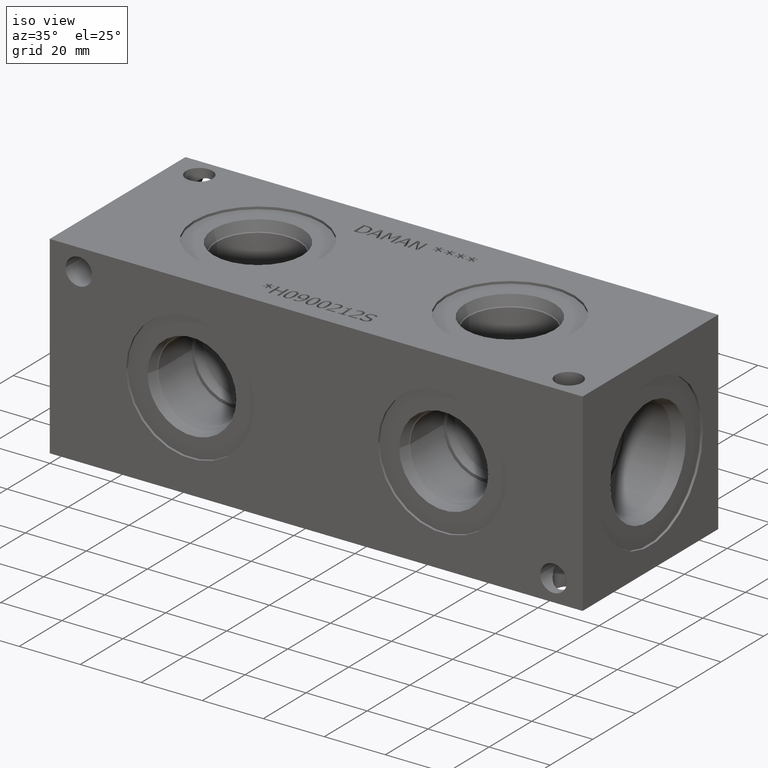
[diagram: clean part render]
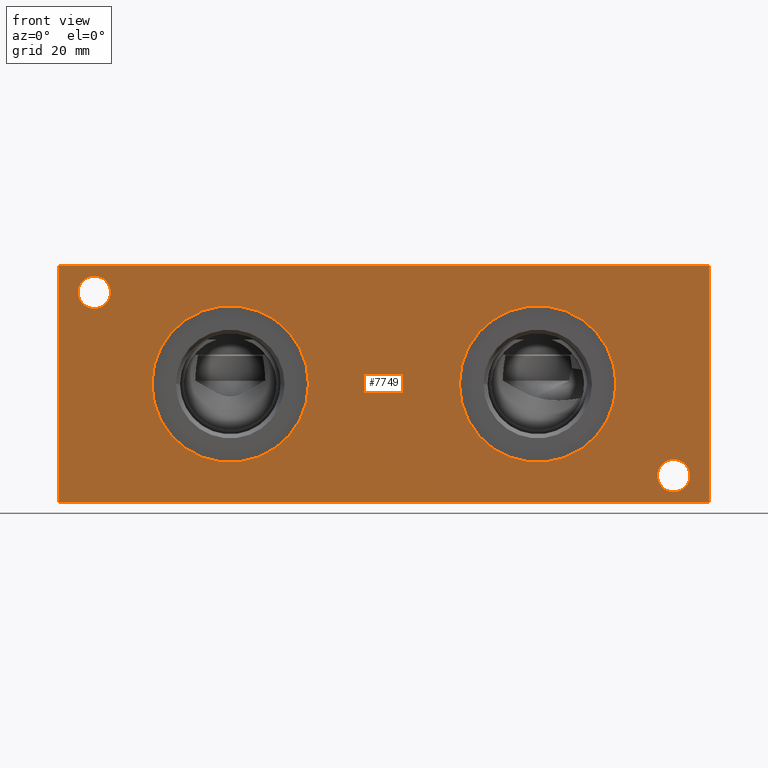
[diagram: tour spotlight — one face highlighted and labeled with its STEP entity id]
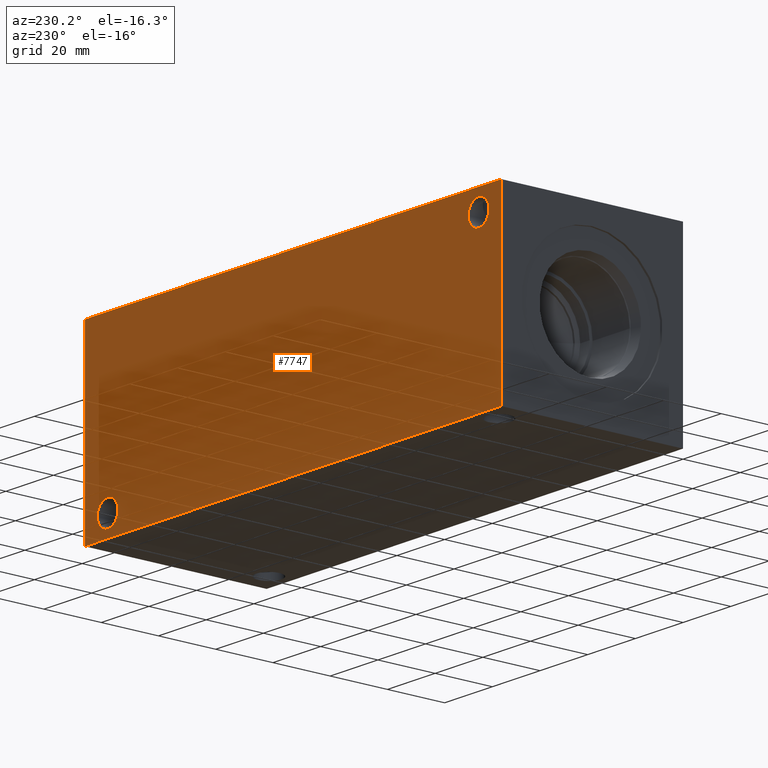
[diagram: tour spotlight — one face highlighted and labeled with its STEP entity id]
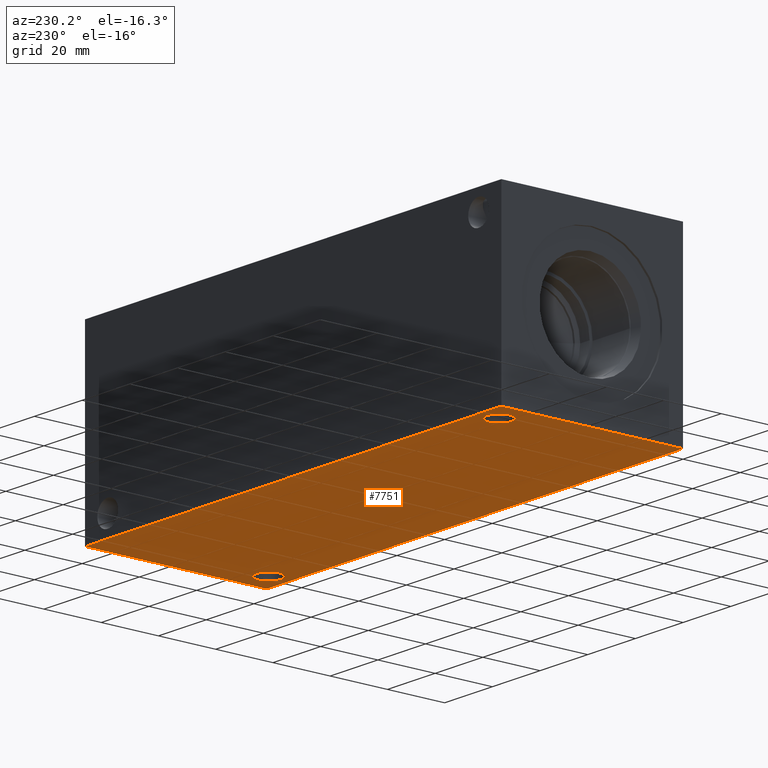
[diagram: tour spotlight — one face highlighted and labeled with its STEP entity id]
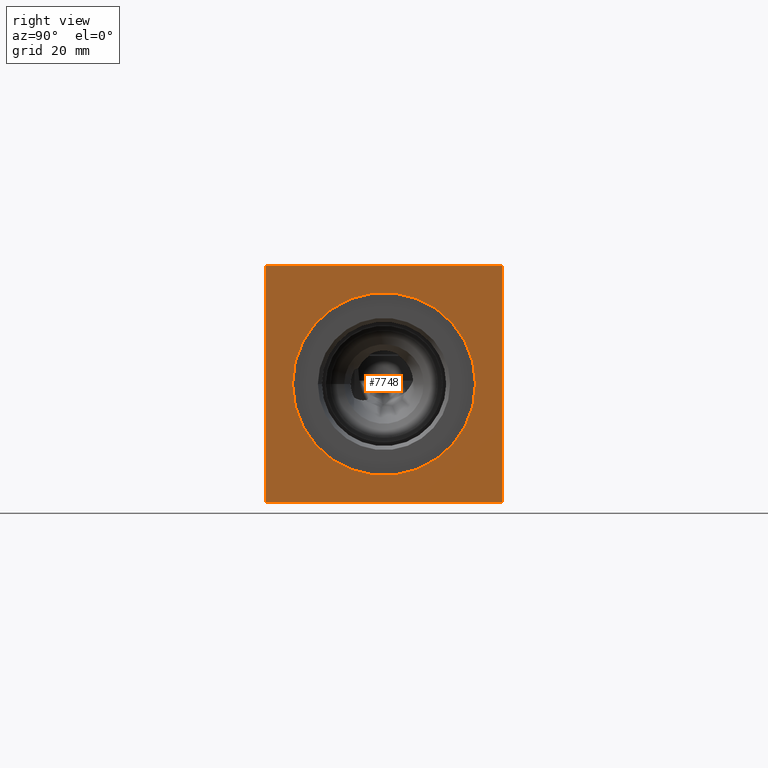
[diagram: tour spotlight — one face highlighted and labeled with its STEP entity id]
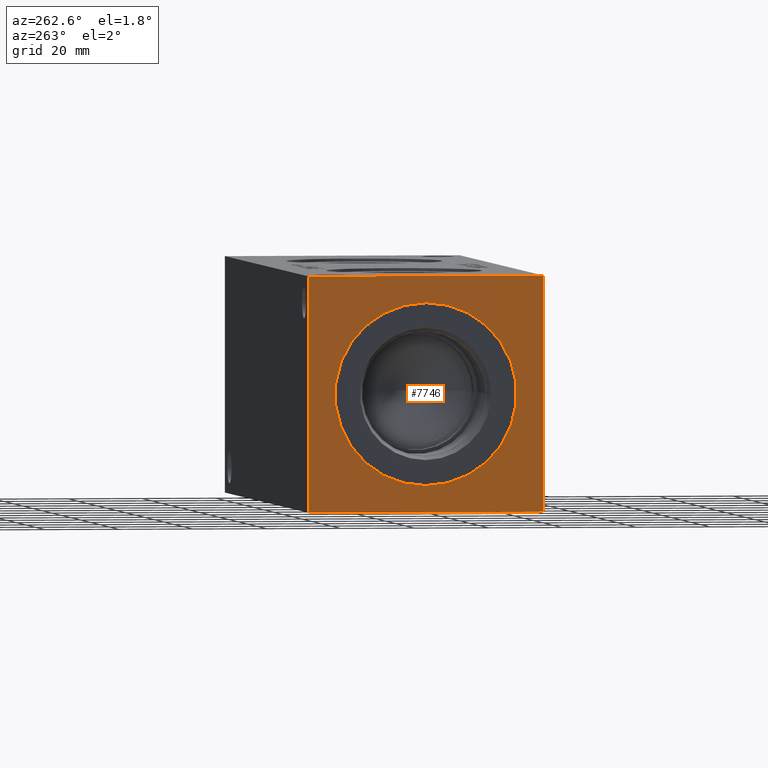
[diagram: tour spotlight — one face highlighted and labeled with its STEP entity id]
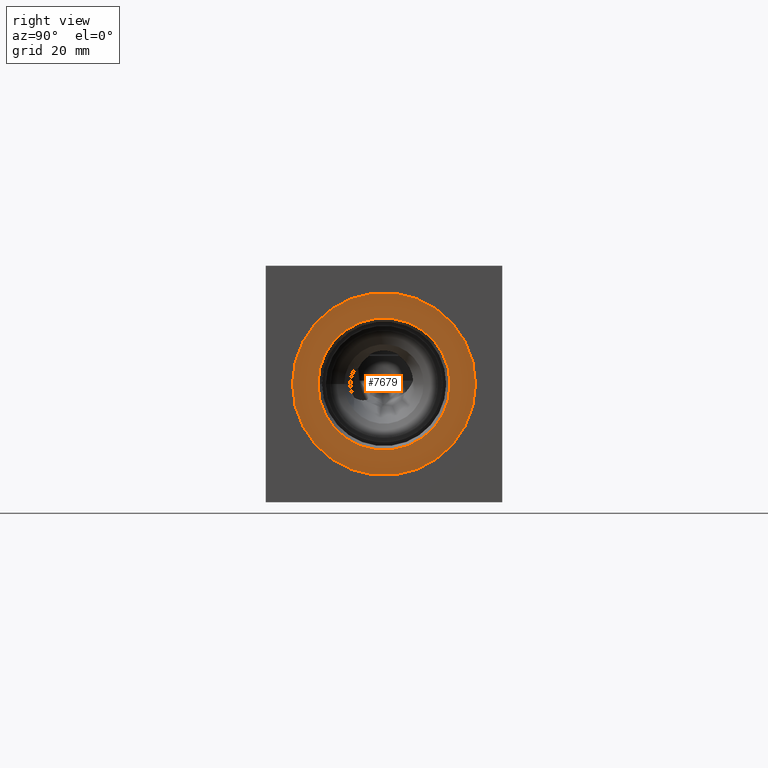
[diagram: tour spotlight — one face highlighted and labeled with its STEP entity id]
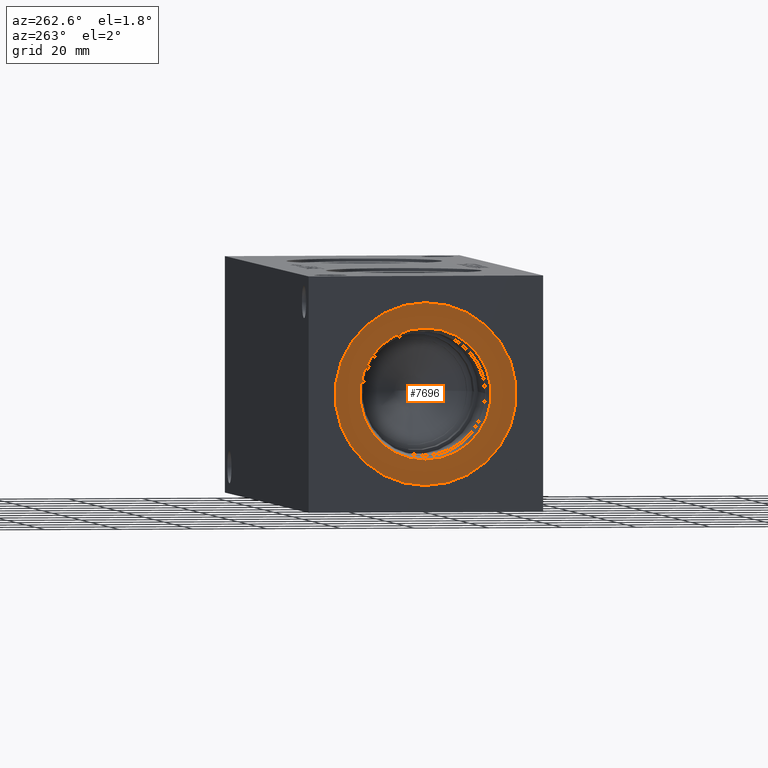
[diagram: tour spotlight — one face highlighted and labeled with its STEP entity id]
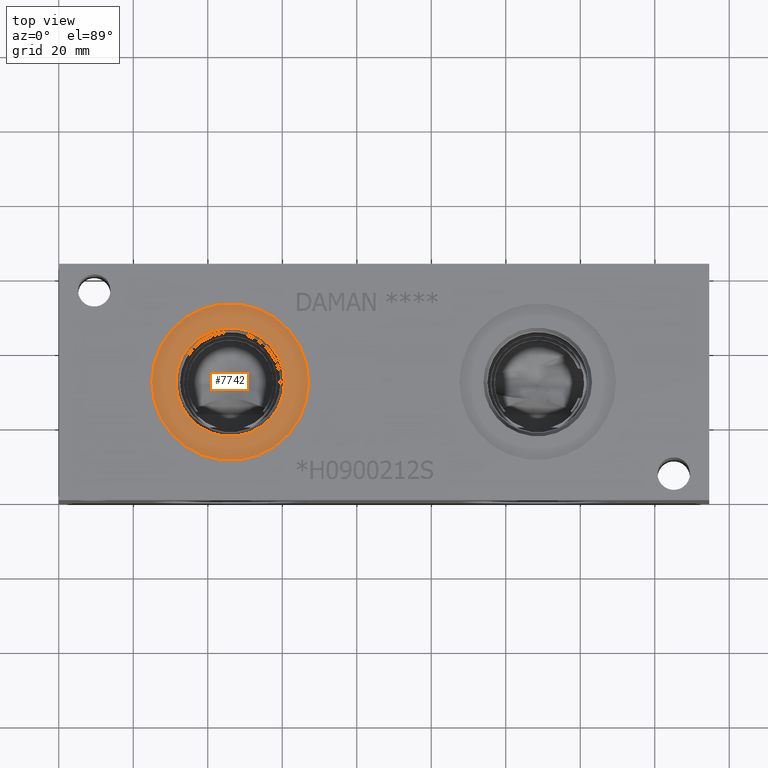
[diagram: tour spotlight — one face highlighted and labeled with its STEP entity id]
A machine part: a face-by-face anatomy tour. The part has 393 B-rep faces; the first image is the clean iso view, then the 8 largest visible faces are spotlighted one at a time (largest first), each with its STEP entity span.

Face 1 — front view, entity #7749. In plain terms, the highlighted planar face has unit normal (0, -1, 0).
Definition (entity closure, byte-faithful):
#149=CIRCLE('',#8064,4.3688);
#150=CIRCLE('',#8065,4.3688);
#152=CIRCLE('',#8074,4.3688);
#153=CIRCLE('',#8075,4.3688);
#155=CIRCLE('',#8084,21.0185);
#156=CIRCLE('',#8085,21.0185);
#178=CIRCLE('',#8126,21.0185);
#179=CIRCLE('',#8127,21.0185);
#258=FACE_BOUND('',#1425,.T.);
#259=FACE_BOUND('',#1426,.T.);
#260=FACE_BOUND('',#1427,.T.);
#261=FACE_BOUND('',#1428,.T.);
#988=FACE_OUTER_BOUND('',#1424,.T.);
#1424=EDGE_LOOP('',(#6810,#6811,#6812,#6813));
#1425=EDGE_LOOP('',(#6814,#6815));
#1426=EDGE_LOOP('',(#6816,#6817));
#1427=EDGE_LOOP('',(#6818,#6819));
#1428=EDGE_LOOP('',(#6820,#6821));
#1701=LINE('',#11909,#2416);
#2141=LINE('',#13480,#2856);
#2146=LINE('',#13489,#2861);
#2147=LINE('',#13491,#2862);
#2416=VECTOR('',#8600,10.);
#2856=VECTOR('',#9744,10.);
#2861=VECTOR('',#9753,10.);
#2862=VECTOR('',#9756,10.);
#3167=VERTEX_POINT('',#11907);
#3168=VERTEX_POINT('',#11908);
#3506=VERTEX_POINT('',#13183);
#3507=VERTEX_POINT('',#13184);
#3511=VERTEX_POINT('',#13201);
#3512=VERTEX_POINT('',#13202);
#3516=VERTEX_POINT('',#13219);
#3517=VERTEX_POINT('',#13220);
#3549=VERTEX_POINT('',#13368);
#3550=VERTEX_POINT('',#13369);
#3582=VERTEX_POINT('',#13478);
#3584=VERTEX_POINT('',#13487);
#4041=EDGE_CURVE('',#3167,#3168,#1701,.T.);
#4538=EDGE_CURVE('',#3506,#3507,#149,.T.);
#4539=EDGE_CURVE('',#3507,#3506,#150,.T.);
#4548=EDGE_CURVE('',#3511,#3512,#152,.T.);
#4549=EDGE_CURVE('',#3512,#3511,#153,.T.);
#4558=EDGE_CURVE('',#3516,#3517,#155,.T.);
#4559=EDGE_CURVE('',#3517,#3516,#156,.T.);
#4606=EDGE_CURVE('',#3549,#3550,#178,.T.);
#4607=EDGE_CURVE('',#3550,#3549,#179,.T.);
#4660=EDGE_CURVE('',#3582,#3167,#2141,.T.);
#4665=EDGE_CURVE('',#3584,#3168,#2146,.T.);
#4666=EDGE_CURVE('',#3582,#3584,#2147,.T.);
#6810=ORIENTED_EDGE('',*,*,#4666,.T.);
#6811=ORIENTED_EDGE('',*,*,#4665,.T.);
#6812=ORIENTED_EDGE('',*,*,#4041,.F.);
#6813=ORIENTED_EDGE('',*,*,#4660,.F.);
#6814=ORIENTED_EDGE('',*,*,#4538,.T.);
#6815=ORIENTED_EDGE('',*,*,#4539,.T.);
#6816=ORIENTED_EDGE('',*,*,#4548,.T.);
#6817=ORIENTED_EDGE('',*,*,#4549,.T.);
#6818=ORIENTED_EDGE('',*,*,#4558,.T.);
#6819=ORIENTED_EDGE('',*,*,#4559,.T.);
#6820=ORIENTED_EDGE('',*,*,#4606,.T.);
#6821=ORIENTED_EDGE('',*,*,#4607,.T.);
#7053=PLANE('',#8189);
#7749=ADVANCED_FACE('',(#988,#258,#259,#260,#261),#7053,.T.);
#8064=AXIS2_PLACEMENT_3D('',#13185,#9461,#9462);
#8065=AXIS2_PLACEMENT_3D('',#13186,#9463,#9464);
#8074=AXIS2_PLACEMENT_3D('',#13203,#9484,#9485);
#8075=AXIS2_PLACEMENT_3D('',#13204,#9486,#9487);
#8084=AXIS2_PLACEMENT_3D('',#13221,#9507,#9508);
#8085=AXIS2_PLACEMENT_3D('',#13222,#9509,#9510);
#8126=AXIS2_PLACEMENT_3D('',#13370,#9605,#9606);
#8127=AXIS2_PLACEMENT_3D('',#13371,#9607,#9608);
#8189=AXIS2_PLACEMENT_3D('',#13490,#9754,#9755);
#8600=DIRECTION('',(1.,0.,0.));
#9461=DIRECTION('center_axis',(0.,1.,0.));
#9462=DIRECTION('ref_axis',(1.,0.,0.));
#9463=DIRECTION('center_axis',(0.,1.,0.));
#9464=DIRECTION('ref_axis',(1.,0.,0.));
#9484=DIRECTION('center_axis',(0.,1.,0.));
#9485=DIRECTION('ref_axis',(1.,0.,0.));
#9486=DIRECTION('center_axis',(0.,1.,0.));
#9487=DIRECTION('ref_axis',(1.,0.,0.));
#9507=DIRECTION('center_axis',(0.,1.,0.));
#9508=DIRECTION('ref_axis',(1.,0.,0.));
#9509=DIRECTION('center_axis',(0.,1.,0.));
#9510=DIRECTION('ref_axis',(1.,0.,0.));
#9605=DIRECTION('center_axis',(0.,1.,0.));
#9606=DIRECTION('ref_axis',(1.,0.,0.));
#9607=DIRECTION('center_axis',(0.,1.,0.));
#9608=DIRECTION('ref_axis',(1.,0.,0.));
#9744=DIRECTION('',(0.,0.,1.));
#9753=DIRECTION('',(0.,0.,1.));
#9754=DIRECTION('center_axis',(0.,-1.,0.));
#9755=DIRECTION('ref_axis',(1.,0.,0.));
#9756=DIRECTION('',(1.,0.,0.));
#11907=CARTESIAN_POINT('',(0.,0.,63.5));
#11908=CARTESIAN_POINT('',(174.625,0.,63.5));
#11909=CARTESIAN_POINT('',(0.,0.,63.5));
#13183=CARTESIAN_POINT('',(169.4688,0.,7.1374));
#13184=CARTESIAN_POINT('',(160.7312,0.,7.1374));
#13185=CARTESIAN_POINT('Origin',(165.1,0.,7.1374));
#13186=CARTESIAN_POINT('Origin',(165.1,0.,7.1374));
#13201=CARTESIAN_POINT('',(13.8938,0.,56.3626));
#13202=CARTESIAN_POINT('',(5.1562,0.,56.3626));
#13203=CARTESIAN_POINT('Origin',(9.525,0.,56.3626));
#13204=CARTESIAN_POINT('Origin',(9.525,0.,56.3626));
#13219=CARTESIAN_POINT('',(149.5933,0.,31.75));
#13220=CARTESIAN_POINT('',(107.5563,0.,31.75));
#13221=CARTESIAN_POINT('Origin',(128.5748,0.,31.75));
#13222=CARTESIAN_POINT('Origin',(128.5748,0.,31.75));
#13368=CARTESIAN_POINT('',(67.0433,0.,31.75));
#13369=CARTESIAN_POINT('',(25.0063,0.,31.75));
#13370=CARTESIAN_POINT('Origin',(46.0248,0.,31.75));
#13371=CARTESIAN_POINT('Origin',(46.0248,0.,31.75));
#13478=CARTESIAN_POINT('',(0.,0.,0.));
#13480=CARTESIAN_POINT('',(0.,0.,0.));
#13487=CARTESIAN_POINT('',(174.625,0.,0.));
#13489=CARTESIAN_POINT('',(174.625,0.,0.));
#13490=CARTESIAN_POINT('Origin',(0.,0.,0.));
#13491=CARTESIAN_POINT('',(0.,0.,0.));

Face 2 — auxiliary view, entity #7747. In plain terms, the highlighted planar face has unit normal (0, 1, 0).
Definition (entity closure, byte-faithful):
#151=CIRCLE('',#8071,4.3688);
#154=CIRCLE('',#8081,4.3688);
#255=FACE_BOUND('',#1420,.T.);
#256=FACE_BOUND('',#1421,.T.);
#986=FACE_OUTER_BOUND('',#1419,.T.);
#1419=EDGE_LOOP('',(#6798,#6799,#6800,#6801));
#1420=EDGE_LOOP('',(#6802));
#1421=EDGE_LOOP('',(#6803));
#1703=LINE('',#11913,#2418);
#2142=LINE('',#13481,#2857);
#2143=LINE('',#13484,#2858);
#2144=LINE('',#13485,#2859);
#2418=VECTOR('',#8602,10.);
#2857=VECTOR('',#9745,10.);
#2858=VECTOR('',#9748,10.);
#2859=VECTOR('',#9749,10.);
#3169=VERTEX_POINT('',#11910);
#3170=VERTEX_POINT('',#11912);
#3510=VERTEX_POINT('',#13195);
#3515=VERTEX_POINT('',#13213);
#3581=VERTEX_POINT('',#13477);
#3583=VERTEX_POINT('',#13483);
#4043=EDGE_CURVE('',#3169,#3170,#1703,.T.);
#4546=EDGE_CURVE('',#3510,#3510,#151,.T.);
#4556=EDGE_CURVE('',#3515,#3515,#154,.T.);
#4661=EDGE_CURVE('',#3581,#3170,#2142,.T.);
#4662=EDGE_CURVE('',#3583,#3581,#2143,.T.);
#4663=EDGE_CURVE('',#3583,#3169,#2144,.T.);
#6798=ORIENTED_EDGE('',*,*,#4662,.T.);
#6799=ORIENTED_EDGE('',*,*,#4661,.T.);
#6800=ORIENTED_EDGE('',*,*,#4043,.F.);
#6801=ORIENTED_EDGE('',*,*,#4663,.F.);
#6802=ORIENTED_EDGE('',*,*,#4546,.T.);
#6803=ORIENTED_EDGE('',*,*,#4556,.T.);
#7051=PLANE('',#8187);
#7747=ADVANCED_FACE('',(#986,#255,#256),#7051,.T.);
#8071=AXIS2_PLACEMENT_3D('',#13197,#9477,#9478);
#8081=AXIS2_PLACEMENT_3D('',#13215,#9500,#9501);
#8187=AXIS2_PLACEMENT_3D('',#13482,#9746,#9747);
#8602=DIRECTION('',(-1.,0.,0.));
#9477=DIRECTION('center_axis',(0.,-1.,0.));
#9478=DIRECTION('ref_axis',(1.,0.,0.));
#9500=DIRECTION('center_axis',(0.,-1.,0.));
#9501=DIRECTION('ref_axis',(1.,0.,0.));
#9745=DIRECTION('',(0.,0.,1.));
#9746=DIRECTION('center_axis',(0.,1.,0.));
#9747=DIRECTION('ref_axis',(-1.,0.,0.));
#9748=DIRECTION('',(-1.,0.,0.));
#9749=DIRECTION('',(0.,0.,1.));
#11910=CARTESIAN_POINT('',(174.625,63.5,63.5));
#11912=CARTESIAN_POINT('',(0.,63.5,63.5));
#11913=CARTESIAN_POINT('',(174.625,63.5,63.5));
#13195=CARTESIAN_POINT('',(160.7312,63.5,7.1374));
#13197=CARTESIAN_POINT('Origin',(165.1,63.5,7.1374));
#13213=CARTESIAN_POINT('',(5.1562,63.5,56.3626));
#13215=CARTESIAN_POINT('Origin',(9.525,63.5,56.3626));
#13477=CARTESIAN_POINT('',(0.,63.5,0.));
#13481=CARTESIAN_POINT('',(0.,63.5,0.));
#13482=CARTESIAN_POINT('Origin',(174.625,63.5,0.));
#13483=CARTESIAN_POINT('',(174.625,63.5,0.));
#13484=CARTESIAN_POINT('',(174.625,63.5,0.));
#13485=CARTESIAN_POINT('',(174.625,63.5,0.));

Face 3 — auxiliary view, entity #7751. In plain terms, the highlighted planar face has unit normal (0, 0, 1).
Definition (entity closure, byte-faithful):
#188=CIRCLE('',#8141,4.3688);
#189=CIRCLE('',#8143,4.3688);
#262=FACE_BOUND('',#1431,.T.);
#263=FACE_BOUND('',#1432,.T.);
#990=FACE_OUTER_BOUND('',#1430,.T.);
#1430=EDGE_LOOP('',(#6825,#6826,#6827,#6828));
#1431=EDGE_LOOP('',(#6829));
#1432=EDGE_LOOP('',(#6830));
#2140=LINE('',#13479,#2855);
#2143=LINE('',#13484,#2858);
#2145=LINE('',#13488,#2860);
#2147=LINE('',#13491,#2862);
#2855=VECTOR('',#9743,10.);
#2858=VECTOR('',#9748,10.);
#2860=VECTOR('',#9752,10.);
#2862=VECTOR('',#9756,10.);
#3559=VERTEX_POINT('',#13397);
#3560=VERTEX_POINT('',#13401);
#3581=VERTEX_POINT('',#13477);
#3582=VERTEX_POINT('',#13478);
#3583=VERTEX_POINT('',#13483);
#3584=VERTEX_POINT('',#13487);
#4621=EDGE_CURVE('',#3559,#3559,#188,.T.);
#4623=EDGE_CURVE('',#3560,#3560,#189,.T.);
#4659=EDGE_CURVE('',#3581,#3582,#2140,.T.);
#4662=EDGE_CURVE('',#3583,#3581,#2143,.T.);
#4664=EDGE_CURVE('',#3584,#3583,#2145,.T.);
#4666=EDGE_CURVE('',#3582,#3584,#2147,.T.);
#6825=ORIENTED_EDGE('',*,*,#4666,.F.);
#6826=ORIENTED_EDGE('',*,*,#4659,.F.);
#6827=ORIENTED_EDGE('',*,*,#4662,.F.);
#6828=ORIENTED_EDGE('',*,*,#4664,.F.);
#6829=ORIENTED_EDGE('',*,*,#4621,.T.);
#6830=ORIENTED_EDGE('',*,*,#4623,.T.);
#7055=PLANE('',#8191);
#7751=ADVANCED_FACE('',(#990,#262,#263),#7055,.F.);
#8141=AXIS2_PLACEMENT_3D('',#13399,#9640,#9641);
#8143=AXIS2_PLACEMENT_3D('',#13403,#9645,#9646);
#8191=AXIS2_PLACEMENT_3D('',#13493,#9759,#9760);
#9640=DIRECTION('center_axis',(0.,0.,1.));
#9641=DIRECTION('ref_axis',(1.,0.,0.));
#9645=DIRECTION('center_axis',(0.,0.,1.));
#9646=DIRECTION('ref_axis',(1.,0.,0.));
#9743=DIRECTION('',(0.,-1.,0.));
#9748=DIRECTION('',(-1.,0.,0.));
#9752=DIRECTION('',(0.,1.,0.));
#9756=DIRECTION('',(1.,0.,0.));
#9759=DIRECTION('center_axis',(0.,0.,1.));
#9760=DIRECTION('ref_axis',(1.,0.,0.));
#13397=CARTESIAN_POINT('',(160.7312,7.1374,0.));
#13399=CARTESIAN_POINT('Origin',(165.1,7.1374,0.));
#13401=CARTESIAN_POINT('',(5.1562,56.3626,0.));
#13403=CARTESIAN_POINT('Origin',(9.525,56.3626,0.));
#13477=CARTESIAN_POINT('',(0.,63.5,0.));
#13478=CARTESIAN_POINT('',(0.,0.,0.));
#13479=CARTESIAN_POINT('',(0.,63.5,0.));
#13483=CARTESIAN_POINT('',(174.625,63.5,0.));
#13484=CARTESIAN_POINT('',(174.625,63.5,0.));
#13487=CARTESIAN_POINT('',(174.625,0.,0.));
#13488=CARTESIAN_POINT('',(174.625,0.,0.));
#13491=CARTESIAN_POINT('',(0.,0.,0.));
#13493=CARTESIAN_POINT('Origin',(87.3125,31.75,0.));

Face 4 — right view, entity #7748. In plain terms, the highlighted planar face has unit normal (1, 0, 0).
Definition (entity closure, byte-faithful):
#120=CIRCLE('',#8013,24.5618);
#121=CIRCLE('',#8014,24.5618);
#257=FACE_BOUND('',#1423,.T.);
#987=FACE_OUTER_BOUND('',#1422,.T.);
#1422=EDGE_LOOP('',(#6804,#6805,#6806,#6807));
#1423=EDGE_LOOP('',(#6808,#6809));
#1702=LINE('',#11911,#2417);
#2144=LINE('',#13485,#2859);
#2145=LINE('',#13488,#2860);
#2146=LINE('',#13489,#2861);
#2417=VECTOR('',#8601,10.);
#2859=VECTOR('',#9749,10.);
#2860=VECTOR('',#9752,10.);
#2861=VECTOR('',#9753,10.);
#3168=VERTEX_POINT('',#11908);
#3169=VERTEX_POINT('',#11910);
#3476=VERTEX_POINT('',#13061);
#3477=VERTEX_POINT('',#13062);
#3583=VERTEX_POINT('',#13483);
#3584=VERTEX_POINT('',#13487);
#4042=EDGE_CURVE('',#3168,#3169,#1702,.T.);
#4491=EDGE_CURVE('',#3476,#3477,#120,.T.);
#4492=EDGE_CURVE('',#3477,#3476,#121,.T.);
#4663=EDGE_CURVE('',#3583,#3169,#2144,.T.);
#4664=EDGE_CURVE('',#3584,#3583,#2145,.T.);
#4665=EDGE_CURVE('',#3584,#3168,#2146,.T.);
#6804=ORIENTED_EDGE('',*,*,#4664,.T.);
#6805=ORIENTED_EDGE('',*,*,#4663,.T.);
#6806=ORIENTED_EDGE('',*,*,#4042,.F.);
#6807=ORIENTED_EDGE('',*,*,#4665,.F.);
#6808=ORIENTED_EDGE('',*,*,#4491,.T.);
#6809=ORIENTED_EDGE('',*,*,#4492,.T.);
#7052=PLANE('',#8188);
#7748=ADVANCED_FACE('',(#987,#257),#7052,.T.);
#8013=AXIS2_PLACEMENT_3D('',#13063,#9348,#9349);
#8014=AXIS2_PLACEMENT_3D('',#13064,#9350,#9351);
#8188=AXIS2_PLACEMENT_3D('',#13486,#9750,#9751);
#8601=DIRECTION('',(0.,1.,0.));
#9348=DIRECTION('center_axis',(-1.,0.,0.));
#9349=DIRECTION('ref_axis',(0.,1.,0.));
#9350=DIRECTION('center_axis',(-1.,0.,0.));
#9351=DIRECTION('ref_axis',(0.,1.,0.));
#9749=DIRECTION('',(0.,0.,1.));
#9750=DIRECTION('center_axis',(1.,0.,0.));
#9751=DIRECTION('ref_axis',(0.,1.,0.));
#9752=DIRECTION('',(0.,1.,0.));
#9753=DIRECTION('',(0.,0.,1.));
#11908=CARTESIAN_POINT('',(174.625,0.,63.5));
#11910=CARTESIAN_POINT('',(174.625,63.5,63.5));
#11911=CARTESIAN_POINT('',(174.625,0.,63.5));
#13061=CARTESIAN_POINT('',(174.625,56.3118,31.75));
#13062=CARTESIAN_POINT('',(174.625,7.1882,31.75));
#13063=CARTESIAN_POINT('Origin',(174.625,31.75,31.75));
#13064=CARTESIAN_POINT('Origin',(174.625,31.75,31.75));
#13483=CARTESIAN_POINT('',(174.625,63.5,0.));
#13485=CARTESIAN_POINT('',(174.625,63.5,0.));
#13486=CARTESIAN_POINT('Origin',(174.625,0.,0.));
#13487=CARTESIAN_POINT('',(174.625,0.,0.));
#13488=CARTESIAN_POINT('',(174.625,0.,0.));
#13489=CARTESIAN_POINT('',(174.625,0.,0.));

Face 5 — auxiliary view, entity #7746. In plain terms, the highlighted planar face has unit normal (-1, 0, 0).
Definition (entity closure, byte-faithful):
#139=CIRCLE('',#8049,24.5618);
#140=CIRCLE('',#8050,24.5618);
#254=FACE_BOUND('',#1418,.T.);
#985=FACE_OUTER_BOUND('',#1417,.T.);
#1417=EDGE_LOOP('',(#6792,#6793,#6794,#6795));
#1418=EDGE_LOOP('',(#6796,#6797));
#1704=LINE('',#11914,#2419);
#2140=LINE('',#13479,#2855);
#2141=LINE('',#13480,#2856);
#2142=LINE('',#13481,#2857);
#2419=VECTOR('',#8603,10.);
#2855=VECTOR('',#9743,10.);
#2856=VECTOR('',#9744,10.);
#2857=VECTOR('',#9745,10.);
#3167=VERTEX_POINT('',#11907);
#3170=VERTEX_POINT('',#11912);
#3496=VERTEX_POINT('',#13154);
#3497=VERTEX_POINT('',#13155);
#3581=VERTEX_POINT('',#13477);
#3582=VERTEX_POINT('',#13478);
#4044=EDGE_CURVE('',#3170,#3167,#1704,.T.);
#4524=EDGE_CURVE('',#3496,#3497,#139,.T.);
#4525=EDGE_CURVE('',#3497,#3496,#140,.T.);
#4659=EDGE_CURVE('',#3581,#3582,#2140,.T.);
#4660=EDGE_CURVE('',#3582,#3167,#2141,.T.);
#4661=EDGE_CURVE('',#3581,#3170,#2142,.T.);
#6792=ORIENTED_EDGE('',*,*,#4659,.T.);
#6793=ORIENTED_EDGE('',*,*,#4660,.T.);
#6794=ORIENTED_EDGE('',*,*,#4044,.F.);
#6795=ORIENTED_EDGE('',*,*,#4661,.F.);
#6796=ORIENTED_EDGE('',*,*,#4524,.T.);
#6797=ORIENTED_EDGE('',*,*,#4525,.T.);
#7050=PLANE('',#8186);
#7746=ADVANCED_FACE('',(#985,#254),#7050,.T.);
#8049=AXIS2_PLACEMENT_3D('',#13156,#9427,#9428);
#8050=AXIS2_PLACEMENT_3D('',#13157,#9429,#9430);
#8186=AXIS2_PLACEMENT_3D('',#13476,#9741,#9742);
#8603=DIRECTION('',(0.,-1.,0.));
#9427=DIRECTION('center_axis',(1.,0.,0.));
#9428=DIRECTION('ref_axis',(0.,0.,1.));
#9429=DIRECTION('center_axis',(1.,0.,0.));
#9430=DIRECTION('ref_axis',(0.,0.,1.));
#9741=DIRECTION('center_axis',(-1.,0.,0.));
#9742=DIRECTION('ref_axis',(0.,-1.,0.));
#9743=DIRECTION('',(0.,-1.,0.));
#9744=DIRECTION('',(0.,0.,1.));
#9745=DIRECTION('',(0.,0.,1.));
#11907=CARTESIAN_POINT('',(0.,0.,63.5));
#11912=CARTESIAN_POINT('',(0.,63.5,63.5));
#11914=CARTESIAN_POINT('',(0.,63.5,63.5));
#13154=CARTESIAN_POINT('',(0.,31.75,56.3118));
#13155=CARTESIAN_POINT('',(0.,31.75,7.1882));
#13156=CARTESIAN_POINT('Origin',(0.,31.75,31.75));
#13157=CARTESIAN_POINT('Origin',(0.,31.75,31.75));
#13476=CARTESIAN_POINT('Origin',(0.,63.5,0.));
#13477=CARTESIAN_POINT('',(0.,63.5,0.));
#13478=CARTESIAN_POINT('',(0.,0.,0.));
#13479=CARTESIAN_POINT('',(0.,63.5,0.));
#13480=CARTESIAN_POINT('',(0.,0.,0.));
#13481=CARTESIAN_POINT('',(0.,63.5,0.));

Face 6 — right view, entity #7679. In plain terms, the highlighted planar face has unit normal (1, 0, 0).
Definition (entity closure, byte-faithful):
#117=CIRCLE('',#8009,24.5618);
#118=CIRCLE('',#8010,24.5618);
#119=CIRCLE('',#8011,17.7546);
#247=FACE_BOUND('',#1344,.T.);
#918=FACE_OUTER_BOUND('',#1343,.T.);
#1343=EDGE_LOOP('',(#6441,#6442));
#1344=EDGE_LOOP('',(#6443));
#3473=VERTEX_POINT('',#13054);
#3474=VERTEX_POINT('',#13055);
#3475=VERTEX_POINT('',#13058);
#4488=EDGE_CURVE('',#3473,#3474,#117,.T.);
#4489=EDGE_CURVE('',#3474,#3473,#118,.T.);
#4490=EDGE_CURVE('',#3475,#3475,#119,.T.);
#6441=ORIENTED_EDGE('',*,*,#4488,.T.);
#6442=ORIENTED_EDGE('',*,*,#4489,.T.);
#6443=ORIENTED_EDGE('',*,*,#4490,.F.);
#7039=PLANE('',#8008);
#7679=ADVANCED_FACE('',(#918,#247),#7039,.T.);
#8008=AXIS2_PLACEMENT_3D('',#13053,#9338,#9339);
#8009=AXIS2_PLACEMENT_3D('',#13056,#9340,#9341);
#8010=AXIS2_PLACEMENT_3D('',#13057,#9342,#9343);
#8011=AXIS2_PLACEMENT_3D('',#13059,#9344,#9345);
#9338=DIRECTION('center_axis',(1.,0.,0.));
#9339=DIRECTION('ref_axis',(0.,1.,0.));
#9340=DIRECTION('center_axis',(1.,0.,0.));
#9341=DIRECTION('ref_axis',(0.,1.,0.));
#9342=DIRECTION('center_axis',(1.,0.,0.));
#9343=DIRECTION('ref_axis',(0.,1.,0.));
#9344=DIRECTION('center_axis',(1.,0.,0.));
#9345=DIRECTION('ref_axis',(0.,1.,0.));
#13053=CARTESIAN_POINT('Origin',(173.8376,31.75,31.75));
#13054=CARTESIAN_POINT('',(173.8376,56.3118,31.75));
#13055=CARTESIAN_POINT('',(173.8376,7.1882,31.75));
#13056=CARTESIAN_POINT('Origin',(173.8376,31.75,31.75));
#13057=CARTESIAN_POINT('Origin',(173.8376,31.75,31.75));
#13058=CARTESIAN_POINT('',(173.8376,13.9954,31.75));
#13059=CARTESIAN_POINT('Origin',(173.8376,31.75,31.75));

Face 7 — auxiliary view, entity #7696. In plain terms, the highlighted planar face has unit normal (1, 0, 0).
Definition (entity closure, byte-faithful):
#141=CIRCLE('',#8051,24.5618);
#142=CIRCLE('',#8052,24.5618);
#143=CIRCLE('',#8054,17.7546);
#144=CIRCLE('',#8055,17.7546);
#249=FACE_BOUND('',#1363,.T.);
#935=FACE_OUTER_BOUND('',#1362,.T.);
#1362=EDGE_LOOP('',(#6521,#6522));
#1363=EDGE_LOOP('',(#6523,#6524));
#3498=VERTEX_POINT('',#13158);
#3499=VERTEX_POINT('',#13160);
#3500=VERTEX_POINT('',#13164);
#3501=VERTEX_POINT('',#13165);
#4527=EDGE_CURVE('',#3498,#3499,#141,.T.);
#4528=EDGE_CURVE('',#3499,#3498,#142,.T.);
#4529=EDGE_CURVE('',#3500,#3501,#143,.T.);
#4530=EDGE_CURVE('',#3501,#3500,#144,.T.);
#6521=ORIENTED_EDGE('',*,*,#4528,.F.);
#6522=ORIENTED_EDGE('',*,*,#4527,.F.);
#6523=ORIENTED_EDGE('',*,*,#4529,.T.);
#6524=ORIENTED_EDGE('',*,*,#4530,.T.);
#7041=PLANE('',#8053);
#7696=ADVANCED_FACE('',(#935,#249),#7041,.F.);
#8051=AXIS2_PLACEMENT_3D('',#13161,#9432,#9433);
#8052=AXIS2_PLACEMENT_3D('',#13162,#9434,#9435);
#8053=AXIS2_PLACEMENT_3D('',#13163,#9436,#9437);
#8054=AXIS2_PLACEMENT_3D('',#13166,#9438,#9439);
#8055=AXIS2_PLACEMENT_3D('',#13167,#9440,#9441);
#9432=DIRECTION('center_axis',(1.,0.,0.));
#9433=DIRECTION('ref_axis',(0.,0.,-1.));
#9434=DIRECTION('center_axis',(1.,0.,0.));
#9435=DIRECTION('ref_axis',(0.,0.,-1.));
#9436=DIRECTION('center_axis',(1.,0.,0.));
#9437=DIRECTION('ref_axis',(0.,0.,-1.));
#9438=DIRECTION('center_axis',(1.,0.,0.));
#9439=DIRECTION('ref_axis',(0.,0.,-1.));
#9440=DIRECTION('center_axis',(1.,0.,0.));
#9441=DIRECTION('ref_axis',(0.,0.,-1.));
#13158=CARTESIAN_POINT('',(0.7874,31.75,7.1882));
#13160=CARTESIAN_POINT('',(0.7874,31.75,56.3118));
#13161=CARTESIAN_POINT('Origin',(0.7874,31.75,31.75));
#13162=CARTESIAN_POINT('Origin',(0.7874,31.75,31.75));
#13163=CARTESIAN_POINT('Origin',(0.7874,31.75,49.5046));
#13164=CARTESIAN_POINT('',(0.7874,31.75,49.5046));
#13165=CARTESIAN_POINT('',(0.787400000000001,31.75,13.9954));
#13166=CARTESIAN_POINT('Origin',(0.7874,31.75,31.75));
#13167=CARTESIAN_POINT('Origin',(0.7874,31.75,31.75));

Face 8 — top view, entity #7742. In plain terms, the highlighted planar face has unit normal (0, 0, -1).
Definition (entity closure, byte-faithful):
#207=CIRCLE('',#8174,21.0185);
#208=CIRCLE('',#8175,21.0185);
#209=CIRCLE('',#8177,14.5923);
#210=CIRCLE('',#8178,14.5923);
#253=FACE_BOUND('',#1413,.T.);
#981=FACE_OUTER_BOUND('',#1412,.T.);
#1412=EDGE_LOOP('',(#6771,#6772));
#1413=EDGE_LOOP('',(#6773,#6774));
#3573=VERTEX_POINT('',#13452);
#3574=VERTEX_POINT('',#13454);
#3575=VERTEX_POINT('',#13458);
#3576=VERTEX_POINT('',#13459);
#4648=EDGE_CURVE('',#3573,#3574,#207,.T.);
#4649=EDGE_CURVE('',#3574,#3573,#208,.T.);
#4650=EDGE_CURVE('',#3575,#3576,#209,.T.);
#4651=EDGE_CURVE('',#3576,#3575,#210,.T.);
#6771=ORIENTED_EDGE('',*,*,#4649,.F.);
#6772=ORIENTED_EDGE('',*,*,#4648,.F.);
#6773=ORIENTED_EDGE('',*,*,#4650,.T.);
#6774=ORIENTED_EDGE('',*,*,#4651,.T.);
#7049=PLANE('',#8176);
#7742=ADVANCED_FACE('',(#981,#253),#7049,.F.);
#8174=AXIS2_PLACEMENT_3D('',#13455,#9714,#9715);
#8175=AXIS2_PLACEMENT_3D('',#13456,#9716,#9717);
#8176=AXIS2_PLACEMENT_3D('',#13457,#9718,#9719);
#8177=AXIS2_PLACEMENT_3D('',#13460,#9720,#9721);
#8178=AXIS2_PLACEMENT_3D('',#13461,#9722,#9723);
#9714=DIRECTION('center_axis',(0.,0.,-1.));
#9715=DIRECTION('ref_axis',(1.,0.,0.));
#9716=DIRECTION('center_axis',(0.,0.,-1.));
#9717=DIRECTION('ref_axis',(1.,0.,0.));
#9718=DIRECTION('center_axis',(0.,0.,-1.));
#9719=DIRECTION('ref_axis',(-1.,0.,0.));
#9720=DIRECTION('center_axis',(0.,0.,-1.));
#9721=DIRECTION('ref_axis',(1.,0.,0.));
#9722=DIRECTION('center_axis',(0.,0.,-1.));
#9723=DIRECTION('ref_axis',(1.,0.,0.));
#13452=CARTESIAN_POINT('',(25.0063,31.75,62.7126));
#13454=CARTESIAN_POINT('',(67.0433,31.75,62.7126));
#13455=CARTESIAN_POINT('Origin',(46.0248,31.75,62.7126));
#13456=CARTESIAN_POINT('Origin',(46.0248,31.75,62.7126));
#13457=CARTESIAN_POINT('Origin',(60.6171,31.75,62.7126));
#13458=CARTESIAN_POINT('',(60.6171,31.75,62.7126));
#13459=CARTESIAN_POINT('',(31.4325,31.75,62.7126));
#13460=CARTESIAN_POINT('Origin',(46.0248,31.75,62.7126));
#13461=CARTESIAN_POINT('Origin',(46.0248,31.75,62.7126));